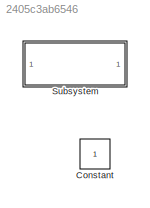
MODEL slx_2405c3ab6546
KIND model
CONFIG AbsTol = auto
CONFIG EnableMultiTasking = off
CONFIG FixedStep = auto
CONFIG MaxStep = auto
CONFIG MinStep = auto
CONFIG RelTol = 1e-3
CONFIG SampleTimeConstraint = Unconstrained
CONFIG SolverName = VariableStepAuto
CONFIG StartTime = 0.0
CONFIG StopTime = 10.0
BLOCK [Constant] Constant
  AttributesFormatString = lobster-trace: example.foo\nlobster-trace: secondexample.foo
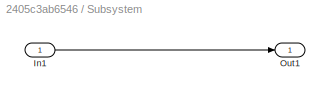
BLOCK [SubSystem] Subsystem
  AttributesFormatString = lobster-trace: example.foo\nlobster-trace: secondexample.foo
  Ports = [1, 1]
  RequestExecContextInheritance = off
BLOCK [Inport] Subsystem/In1
BLOCK [Outport] Subsystem/Out1
LINE Subsystem/In1:1 -> Subsystem/Out1:1
